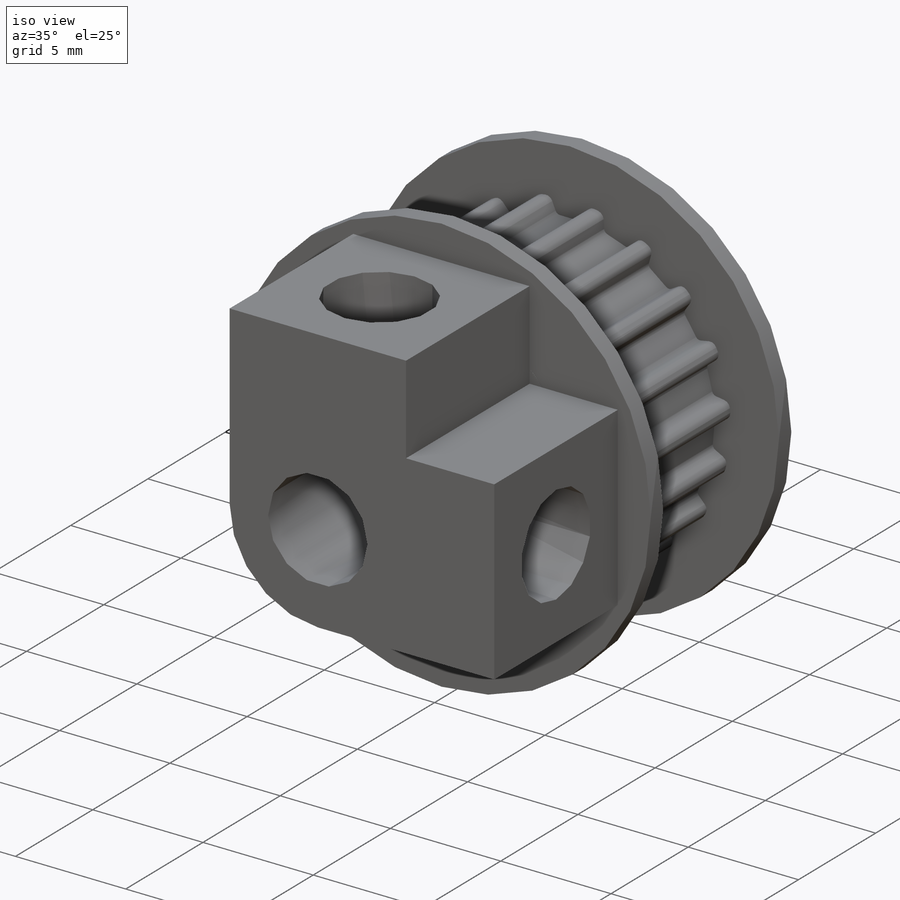
[diagram: iso view]
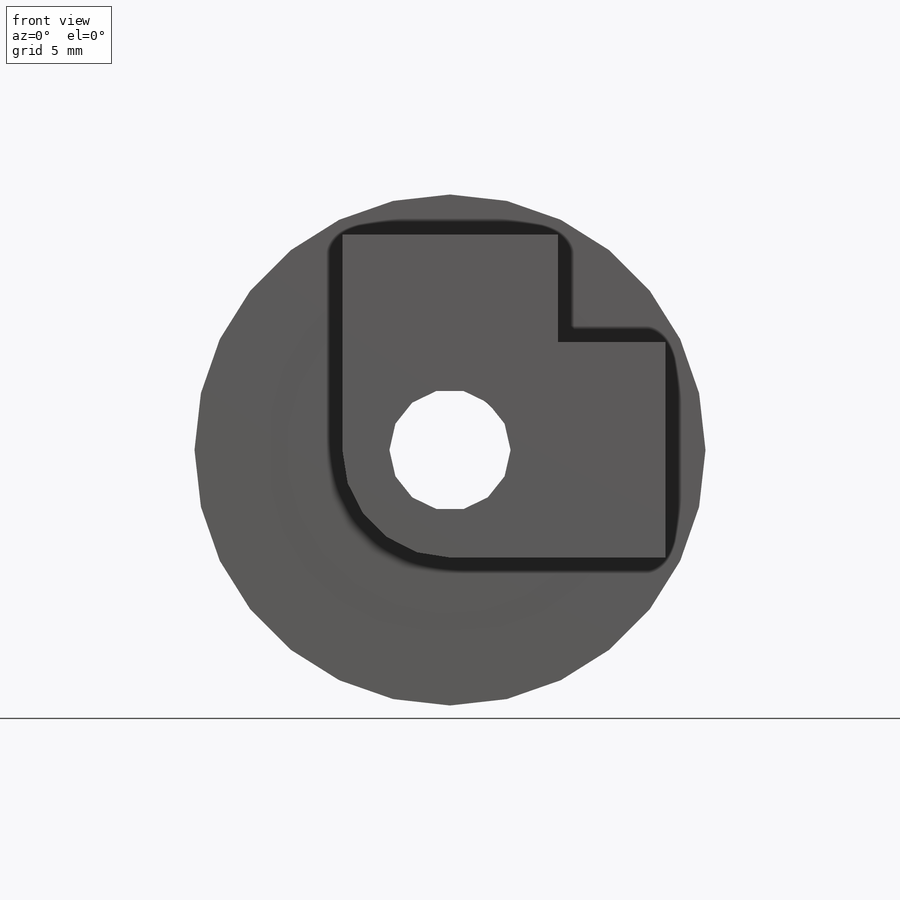
[diagram: front view]
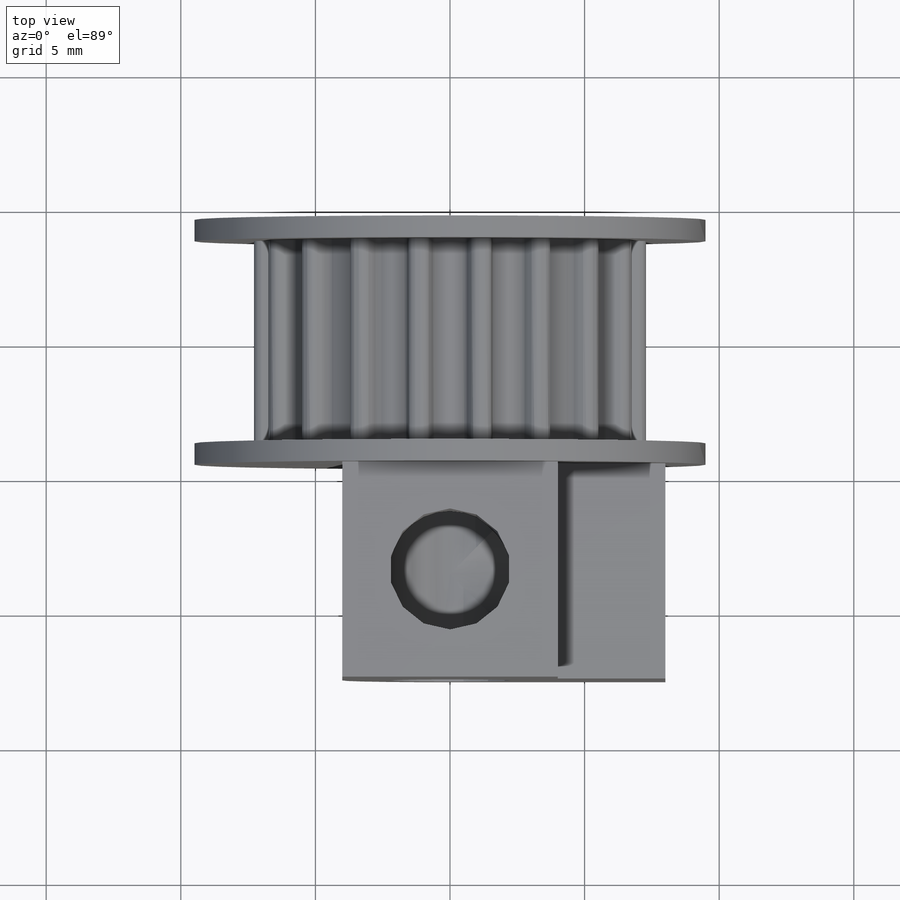
[diagram: top view]
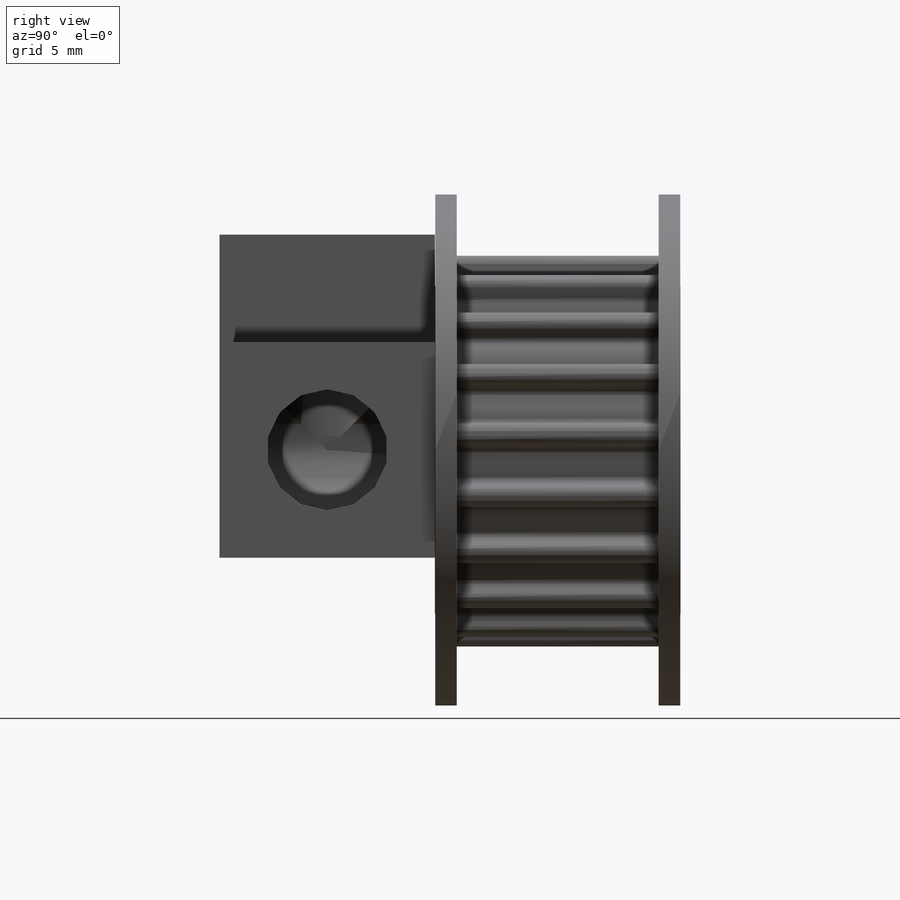
[diagram: right view]
SOLIDWORKS PART (.sldprt)
format: sldprt  version: not decoded by parser v0  size: 383,488 bytes
history: native  units: mm
features: sketch x6, cut_extrude x3, extrude x2, material x1, revolve x1, pattern_circular x1 (+13 scaffold rows collapsed)
feature tree (27):
  scaffold x13  (default folders/planes/origin — collapsed)
  material  "PLA Black"
  sketch  "GearBelt-BaseSketch"  dims[Mounting Surface=4.56mm Flange ID=6.1mm Flange Surface=4.55mm Flange Height(1)=~1.23087mm Flange Angle=0.0deg Flange Thickness=0.8mm Flange Height(2)=2.0mm Biegedurchmesser=0.19mm OD=7.3mm]
  revolve  "T 2,5 Form SE DIN 7721, 6mm Belt Width, 15.2000mm P.D."  Angle=360deg
  sketch  "Tooth-Sketch"
  extrude  "Tooth-Extrude"  Depth=3.75mm
  pattern_circular  "Tooth Pattern, 19"  Count=19 Angle=18.947368deg
  sketch  "Sketch3"  dims[D1=4.5mm]
  cut_extrude  "Cut-Extrude2"  [1 undecoded]
  sketch  "Sketch6"  dims[D1=8.0mm D2=8.0mm]
  extrude  "Boss-Extrude1"  Depth=8mm
  sketch  "Sketch7"  dims[D1=4.5mm]
  cut_extrude  "Cut-Extrude3"  Depth=8mm
  sketch  "Sketch8"  dims[D1=4.5mm]
  cut_extrude  "Cut-Extrude4"  Depth=8mm
decode coverage: 11 of 13 modeling features carry decoded parameters
note: ~ marks probable driven/reference dimensions
note: 1 parameter value undecoded
note: suppression state not decoded; provenance and decode notes live in map.json
